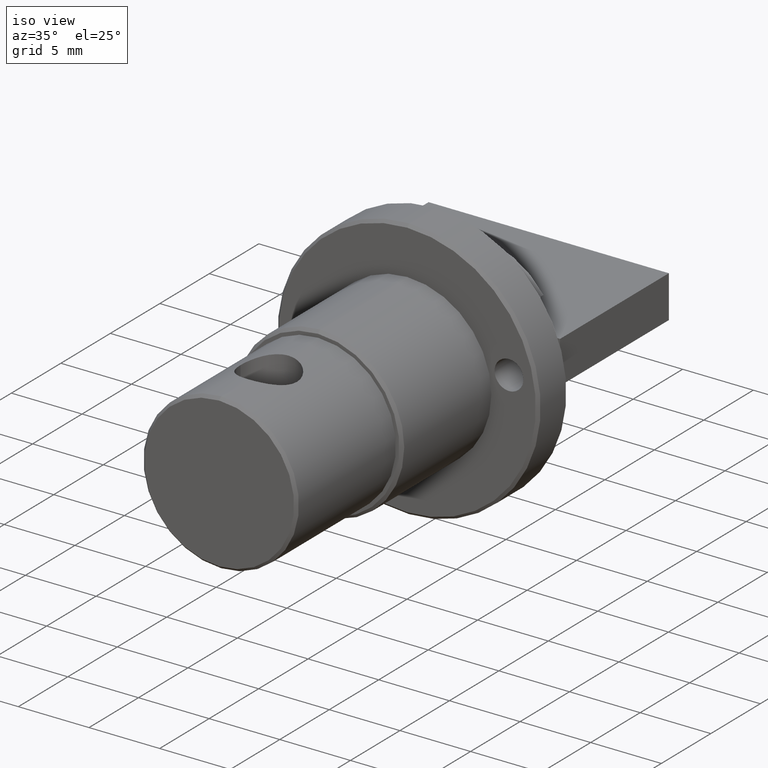
[diagram: clean part render]
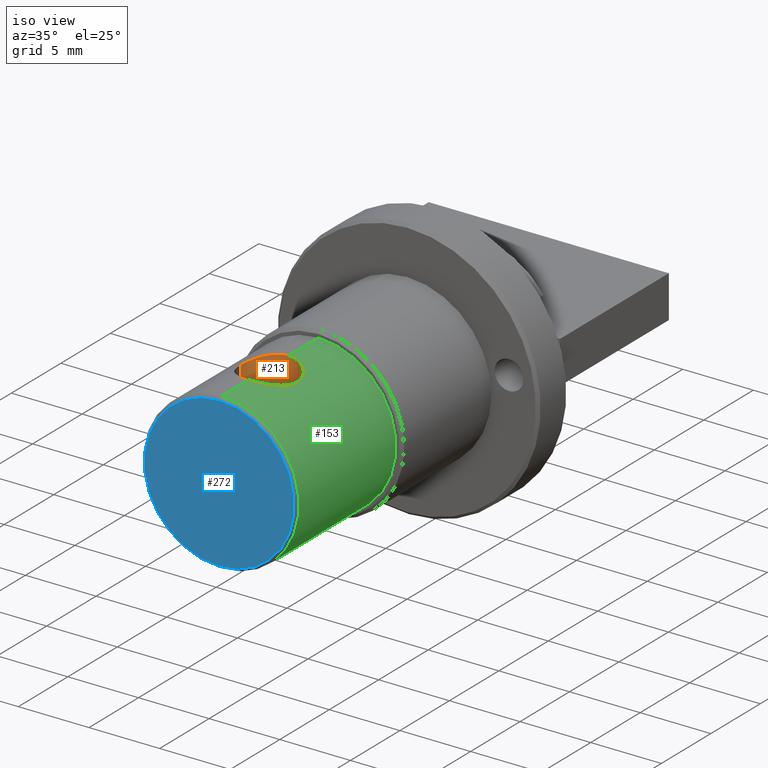
[diagram: same view with three faces highlighted in distinct colors, each labeled with its STEP entity id]
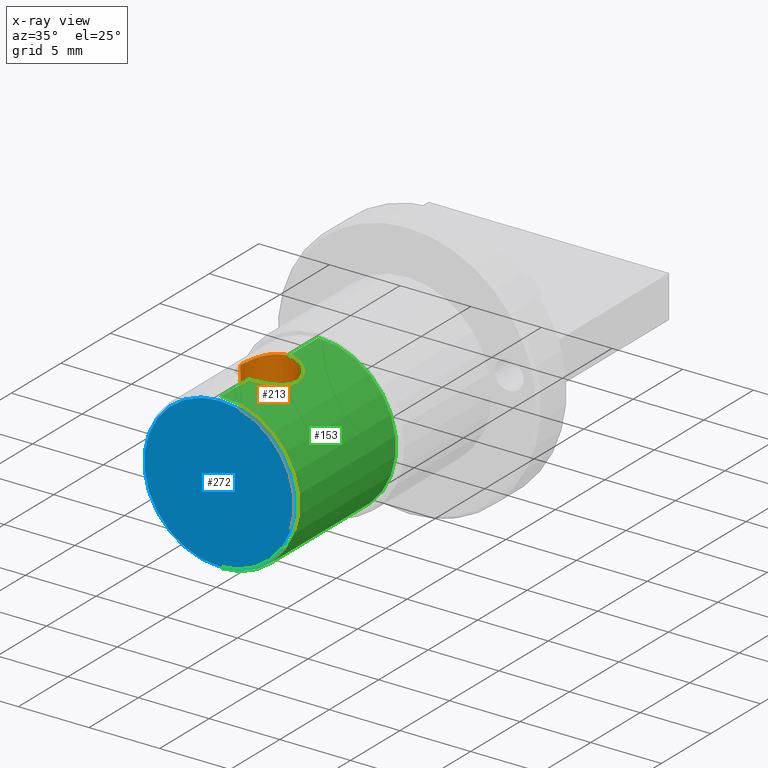
[diagram: x-ray of the same camera — body ghosted, the three highlighted faces saturated]
A machine part, iso view with three faces highlighted in distinct colors.
The next image is the same camera in x-ray (body ghosted, the three faces saturated) — at least one of them is partly hidden behind the body in this view.
Their STEP definitions:

[orange] entity #213 — the highlighted cylindrical surface (edge-blend (fillet) strip) has radius 2 mm, axis along (-0, -0, 1).
#56 = EDGE_CURVE ( 'NONE', #78, #57, #521, .T. ) ;
#57 = VERTEX_POINT ( 'NONE', #514 ) ;
#62 = VERTEX_POINT ( 'NONE', #750 ) ;
#78 = VERTEX_POINT ( 'NONE', #764 ) ;
#83 = EDGE_CURVE ( 'NONE', #84, #62, #724, .T. ) ;
#84 = VERTEX_POINT ( 'NONE', #722 ) ;
#117 = VERTEX_POINT ( 'NONE', #966 ) ;
#119 = EDGE_CURVE ( 'NONE', #117, #62, #960, .T. ) ;
#160 = EDGE_CURVE ( 'NONE', #84, #161, #1021, .T. ) ;
#161 = VERTEX_POINT ( 'NONE', #1265 ) ;
#213 = ADVANCED_FACE ( 'NONE', ( #1282 ), #1236, .F. ) ;
#214 = EDGE_LOOP ( 'NONE', ( #215, #216, #217, #218, #219, #220 ) ) ;
#215 = ORIENTED_EDGE ( 'NONE', *, *, #56, .F. ) ;
#216 = ORIENTED_EDGE ( 'NONE', *, *, #270, .F. ) ;
#217 = ORIENTED_EDGE ( 'NONE', *, *, #160, .F. ) ;
#218 = ORIENTED_EDGE ( 'NONE', *, *, #83, .T. ) ;
#219 = ORIENTED_EDGE ( 'NONE', *, *, #119, .F. ) ;
#220 = ORIENTED_EDGE ( 'NONE', *, *, #258, .F. ) ;
#258 = EDGE_CURVE ( 'NONE', #57, #117, #1460, .T. ) ;
#270 = EDGE_CURVE ( 'NONE', #161, #78, #1327, .T. ) ;
#514 = CARTESIAN_POINT ( 'NONE',  ( -7.796632573378702500, -10.69412143911177200, 5.936314277298955700 ) ) ;
#515 = DIRECTION ( 'NONE',  ( -0.0000000000000000000, -0.0000000000000000000, 1.000000000000000000 ) ) ;
#516 = VECTOR ( 'NONE', #515, 1000.000000000000000 ) ;
#517 = CARTESIAN_POINT ( 'NONE',  ( -7.796632573378701600, -10.69412143911177200, -9.187161105680843300 ) ) ;
#521 = LINE ( 'NONE', #517, #516 ) ;
#553 = CARTESIAN_POINT ( 'NONE',  ( -4.787224662946911700, -8.947997835427653300, -4.599191274786398300 ) ) ;
#554 = CARTESIAN_POINT ( 'NONE',  ( -4.565871250806245600, -9.096592025454578200, -4.551026818398072200 ) ) ;
#722 = CARTESIAN_POINT ( 'NONE',  ( -3.796632573378701200, -10.69412143911177200, -4.310636488660642300 ) ) ;
#724 = LINE ( 'NONE', #796, #795 ) ;
#750 = CARTESIAN_POINT ( 'NONE',  ( -3.796632573378701200, -10.69412143911177200, 5.936314277298955700 ) ) ;
#764 = CARTESIAN_POINT ( 'NONE',  ( -7.796632573378702500, -10.69412143911177200, -4.310636488660642300 ) ) ;
#794 = DIRECTION ( 'NONE',  ( -0.0000000000000000000, -0.0000000000000000000, 1.000000000000000000 ) ) ;
#795 = VECTOR ( 'NONE', #794, 1000.000000000000000 ) ;
#796 = CARTESIAN_POINT ( 'NONE',  ( -3.796632573378701200, -10.69412143911177200, -9.187161105680843300 ) ) ;
#912 = CARTESIAN_POINT ( 'NONE',  ( -3.796632573378701200, -10.69412143911177200, 5.936314277298955700 ) ) ;
#913 = CARTESIAN_POINT ( 'NONE',  ( -3.796632573378701600, -10.56234879575857400, 5.936314277298956600 ) ) ;
#914 = CARTESIAN_POINT ( 'NONE',  ( -3.810012843868659300, -10.42854724916251800, 5.941591823992380000 ) ) ;
#915 = CARTESIAN_POINT ( 'NONE',  ( -3.861680616657353400, -10.17148530830374800, 5.961307160560143500 ) ) ;
#916 = CARTESIAN_POINT ( 'NONE',  ( -3.899781754614450400, -10.04668325976409100, 5.975669795395866400 ) ) ;
#917 = CARTESIAN_POINT ( 'NONE',  ( -4.000636903993294500, -9.804391828346503200, 6.011614278706140600 ) ) ;
#918 = CARTESIAN_POINT ( 'NONE',  ( -4.063056635765268400, -9.688410474715494700, 6.033032516914404100 ) ) ;
#919 = CARTESIAN_POINT ( 'NONE',  ( -4.207086312247201800, -9.473431978560048700, 6.078676878209208200 ) ) ;
#920 = CARTESIAN_POINT ( 'NONE',  ( -4.289496431387442000, -9.372900694955060200, 6.103177327804862000 ) ) ;
#921 = CARTESIAN_POINT ( 'NONE',  ( -4.474270128914631600, -9.187986926275245400, 6.152361125454006300 ) ) ;
#922 = CARTESIAN_POINT ( 'NONE',  ( -4.574342916095379700, -9.105772161941830600, 6.176430937447507900 ) ) ;
#923 = CARTESIAN_POINT ( 'NONE',  ( -4.789881985136525500, -8.961118644635641700, 6.221033127562410700 ) ) ;
#924 = CARTESIAN_POINT ( 'NONE',  ( -4.906686503631032500, -8.898260617001362500, 6.241731503280235000 ) ) ;
#934 = CARTESIAN_POINT ( 'NONE',  ( -4.291483019030438900, -9.370775968644867500, -4.478047801060567300 ) ) ;
#935 = CARTESIAN_POINT ( 'NONE',  ( -4.207892923962649700, -9.472279974038574600, -4.453250950807604800 ) ) ;
#936 = CARTESIAN_POINT ( 'NONE',  ( -4.062743094020730100, -9.688826699858353200, -4.407259112801550100 ) ) ;
#937 = CARTESIAN_POINT ( 'NONE',  ( -4.001227606803428000, -9.803246112795079600, -4.386140245936761800 ) ) ;
#938 = CARTESIAN_POINT ( 'NONE',  ( -3.900418308647793700, -10.04488396077734300, -4.350225559767229000 ) ) ;
#939 = CARTESIAN_POINT ( 'NONE',  ( -3.861398282279971700, -10.17251474896327700, -4.335522913908856200 ) ) ;
#940 = CARTESIAN_POINT ( 'NONE',  ( -3.809849537905188700, -10.42973825014786500, -4.315850435306871600 ) ) ;
#960 = B_SPLINE_CURVE_WITH_KNOTS ( 'NONE', 3,
 ( #965, #964, #963, #962, #961, #924, #923, #922, #921, #920, #919, #918, #917, #916, #915, #914, #913, #912 ),
 .UNSPECIFIED., .F., .F.,
 ( 4, 2, 2, 2, 2, 2, 2, 2, 4 ),
 ( 0.006307469902651559800, 0.006701514600017083300, 0.007095559297382606800, 0.007489603994748130300, 0.007883648692113652900, 0.008277693389479177200, 0.008671738086844699800, 0.009065782784210222500, 0.009459827481575746800 ),
 .UNSPECIFIED. ) ;
#961 = CARTESIAN_POINT ( 'NONE',  ( -5.148247848154877500, -8.797620095176885300, 6.275848707122715800 ) ) ;
#962 = CARTESIAN_POINT ( 'NONE',  ( -5.273355803227969900, -8.759265688621066900, 6.289432360463374400 ) ) ;
#963 = CARTESIAN_POINT ( 'NONE',  ( -5.532647414323493600, -8.707215002163890100, 6.308037380942868900 ) ) ;
#964 = CARTESIAN_POINT ( 'NONE',  ( -5.665319842569435800, -8.694121439111773600, 6.312838894319156700 ) ) ;
#965 = CARTESIAN_POINT ( 'NONE',  ( -5.796632573378701600, -8.694121439111771800, 6.312838894319156700 ) ) ;
#966 = CARTESIAN_POINT ( 'NONE',  ( -5.796632573378701600, -8.694121439111771800, 6.312838894319156700 ) ) ;
#1019 = CARTESIAN_POINT ( 'NONE',  ( -3.796632573378701200, -10.56068842425134600, -4.310636488660642300 ) ) ;
#1020 = CARTESIAN_POINT ( 'NONE',  ( -3.796632573378701200, -10.69412143911177200, -4.310636488660642300 ) ) ;
#1021 = B_SPLINE_CURVE_WITH_KNOTS ( 'NONE', 3,
 ( #1020, #1019, #940, #939, #938, #937, #936, #935, #934, #554, #553, #1316, #1268, #1319, #1267, #1266 ),
 .UNSPECIFIED., .F., .F.,
 ( 4, 2, 2, 2, 2, 2, 2, 4 ),
 ( 0.0000000000000000000, 0.0003943225979855521400, 0.0007886451959711042900, 0.001182967793956656500, 0.001577290391942208600, 0.002365935587913313100, 0.002760258185898866900, 0.003154580783884421500 ),
 .UNSPECIFIED. ) ;
#1231 = DIRECTION ( 'NONE',  ( 1.000000000000000000, 0.0000000000000000000, 0.0000000000000000000 ) ) ;
#1232 = DIRECTION ( 'NONE',  ( -0.0000000000000000000, -0.0000000000000000000, 1.000000000000000000 ) ) ;
#1233 = CARTESIAN_POINT ( 'NONE',  ( -5.796632573378701600, -10.69412143911177200, -9.187161105680843300 ) ) ;
#1234 = AXIS2_PLACEMENT_3D ( 'NONE', #1233, #1232, #1231 ) ;
#1236 = CYLINDRICAL_SURFACE ( 'NONE', #1234, 2.000000000000000400 ) ;
#1265 = CARTESIAN_POINT ( 'NONE',  ( -5.796632573378894400, -8.694121439109775200, -4.687161105681569000 ) ) ;
#1266 = CARTESIAN_POINT ( 'NONE',  ( -5.796632573378894400, -8.694121439109775200, -4.687161105681569000 ) ) ;
#1267 = CARTESIAN_POINT ( 'NONE',  ( -5.664797746405051600, -8.694121439111748700, -4.687161105680854900 ) ) ;
#1268 = CARTESIAN_POINT ( 'NONE',  ( -5.275282480390211000, -8.758761590933851000, -4.663933349050538800 ) ) ;
#1282 = FACE_OUTER_BOUND ( 'NONE', #214, .T. ) ;
#1316 = CARTESIAN_POINT ( 'NONE',  ( -5.147918172736792600, -8.797774261339174700, -4.650119401937325300 ) ) ;
#1319 = CARTESIAN_POINT ( 'NONE',  ( -5.534161755616436200, -8.707029913484039000, -4.682427177039632400 ) ) ;
#1325 = CARTESIAN_POINT ( 'NONE',  ( -5.796632573378894400, -8.694121439109775200, -4.687161105681569000 ) ) ;
#1327 = B_SPLINE_CURVE_WITH_KNOTS ( 'NONE', 3,
 ( #1325, #1355, #1354, #1353, #1352, #1351, #1350, #1349, #1348, #1403, #1402, #1401, #1400, #1399, #1398, #1397, #1396, #1395 ),
 .UNSPECIFIED., .F., .F.,
 ( 4, 2, 2, 2, 2, 2, 2, 2, 4 ),
 ( 0.003154580783884421500, 0.003548663281688291700, 0.003942745779492161900, 0.004336828277296031700, 0.004730910775099902300, 0.005124993272903772100, 0.005519075770707641800, 0.005913158268511511600, 0.006307240766315382200 ),
 .UNSPECIFIED. ) ;
#1348 = CARTESIAN_POINT ( 'NONE',  ( -7.120607049843958000, -9.189479933795265500, -4.526271335815656500 ) ) ;
#1349 = CARTESIAN_POINT ( 'NONE',  ( -7.018894283479181900, -9.105755752591838000, -4.550758411778813800 ) ) ;
#1350 = CARTESIAN_POINT ( 'NONE',  ( -6.803460990345707100, -8.961168531246297400, -4.595339753686738000 ) ) ;
#1351 = CARTESIAN_POINT ( 'NONE',  ( -6.688544805027534700, -8.899150626150763800, -4.615755151080408700 ) ) ;
#1352 = CARTESIAN_POINT ( 'NONE',  ( -6.444873541334097000, -8.797489873464153100, -4.650211937054891100 ) ) ;
#1353 = CARTESIAN_POINT ( 'NONE',  ( -6.319587840804312700, -8.759241402071076300, -4.663763740041400900 ) ) ;
#1354 = CARTESIAN_POINT ( 'NONE',  ( -6.062115176905426700, -8.707475532894093800, -4.682265983081991000 ) ) ;
#1355 = CARTESIAN_POINT ( 'NONE',  ( -5.928387127079219900, -8.694121439111793100, -4.687161105680835300 ) ) ;
#1395 = CARTESIAN_POINT ( 'NONE',  ( -7.796632573378702500, -10.69412143911177200, -4.310636488660642300 ) ) ;
#1396 = CARTESIAN_POINT ( 'NONE',  ( -7.796632573378703400, -10.56281652139025000, -4.310636488660643200 ) ) ;
#1397 = CARTESIAN_POINT ( 'NONE',  ( -7.783580128859766100, -10.43041290075932900, -4.315788145463882200 ) ) ;
#1398 = CARTESIAN_POINT ( 'NONE',  ( -7.731531191994914600, -10.17098654531360000, -4.335650518809998700 ) ) ;
#1399 = CARTESIAN_POINT ( 'NONE',  ( -7.693245490324578400, -10.04619545883123500, -4.350074728716331900 ) ) ;
#1400 = CARTESIAN_POINT ( 'NONE',  ( -7.593245225409162000, -9.805790638557988700, -4.385718656984423100 ) ) ;
#1401 = CARTESIAN_POINT ( 'NONE',  ( -7.530614662382916400, -9.689037120461138700, -4.407224536928949600 ) ) ;
#1402 = CARTESIAN_POINT ( 'NONE',  ( -7.385967303729126200, -9.473095850728480400, -4.453067601825938300 ) ) ;
#1403 = CARTESIAN_POINT ( 'NONE',  ( -7.304016540069915700, -9.373270179198366100, -4.477416301871658200 ) ) ;
#1434 = CARTESIAN_POINT ( 'NONE',  ( -5.796632573378701600, -8.694121439111771800, 6.312838894319156700 ) ) ;
#1435 = CARTESIAN_POINT ( 'NONE',  ( -6.059283089214661200, -8.694121439111768300, 6.312838894319155800 ) ) ;
#1436 = CARTESIAN_POINT ( 'NONE',  ( -6.324461471352406300, -8.747507369359215800, 6.292841999810163700 ) ) ;
#1437 = CARTESIAN_POINT ( 'NONE',  ( -6.685350957671254900, -8.897692466415072900, 6.241921595738635800 ) ) ;
#1438 = CARTESIAN_POINT ( 'NONE',  ( -6.802208536073803400, -8.960417224858954200, 6.221256922005154300 ) ) ;
#1439 = CARTESIAN_POINT ( 'NONE',  ( -7.018261523612966200, -9.105242580539576000, 6.176586771214434000 ) ) ;
#1440 = CARTESIAN_POINT ( 'NONE',  ( -7.118080206862383200, -9.187263294276892400, 6.152577289461397000 ) ) ;
#1441 = CARTESIAN_POINT ( 'NONE',  ( -7.301750985843288100, -9.370692604170153900, 6.103741325951770800 ) ) ;
#1442 = CARTESIAN_POINT ( 'NONE',  ( -7.385413363031122300, -9.472407856503929600, 6.078910882393928200 ) ) ;
#1443 = CARTESIAN_POINT ( 'NONE',  ( -7.529846065706087700, -9.687751991288868300, 6.033155893426458000 ) ) ;
#1444 = CARTESIAN_POINT ( 'NONE',  ( -7.591760627339146700, -9.802541180567375900, 6.011917710515512600 ) ) ;
#1445 = CARTESIAN_POINT ( 'NONE',  ( -7.693309006321118000, -10.04603302210160700, 5.975737670768134000 ) ) ;
#1446 = CARTESIAN_POINT ( 'NONE',  ( -7.731532429452900400, -10.17124638724478200, 5.961326971818881900 ) ) ;
#1447 = CARTESIAN_POINT ( 'NONE',  ( -7.783280397493091300, -10.42866674270873500, 5.941581172903092100 ) ) ;
#1448 = CARTESIAN_POINT ( 'NONE',  ( -7.796632573378702500, -10.56241288513460000, 5.936314277298955700 ) ) ;
#1458 = CARTESIAN_POINT ( 'NONE',  ( -7.796632573378702500, -10.69412143911177200, 5.936314277298955700 ) ) ;
#1460 = B_SPLINE_CURVE_WITH_KNOTS ( 'NONE', 3,
 ( #1458, #1448, #1447, #1446, #1445, #1444, #1443, #1442, #1441, #1440, #1439, #1438, #1437, #1436, #1435, #1434 ),
 .UNSPECIFIED., .F., .F.,
 ( 4, 2, 2, 2, 2, 2, 2, 4 ),
 ( 0.003154811591834433400, 0.003548893880686574500, 0.003942976169538715500, 0.004337058458390856100, 0.004731140747242997500, 0.005125223036095139000, 0.005519305324947279500, 0.006307469902651559800 ),
 .UNSPECIFIED. ) ;

[blue] entity #272 — the highlighted planar face has unit normal (0, -1, 0).
#126 = EDGE_CURVE ( 'NONE', #166, #145, #955, .T. ) ;
#145 = VERTEX_POINT ( 'NONE', #1057 ) ;
#166 = VERTEX_POINT ( 'NONE', #1318 ) ;
#272 = ADVANCED_FACE ( 'NONE', ( #1326 ), #1389, .T. ) ;
#273 = EDGE_LOOP ( 'NONE', ( #274, #276 ) ) ;
#274 = ORIENTED_EDGE ( 'NONE', *, *, #275, .T. ) ;
#275 = EDGE_CURVE ( 'NONE', #145, #166, #1388, .T. ) ;
#276 = ORIENTED_EDGE ( 'NONE', *, *, #126, .T. ) ;
#892 = DIRECTION ( 'NONE',  ( 0.0000000000000000000, 0.0000000000000000000, -1.000000000000000000 ) ) ;
#893 = DIRECTION ( 'NONE',  ( 0.0000000000000000000, -1.000000000000000000, 0.0000000000000000000 ) ) ;
#894 = CARTESIAN_POINT ( 'NONE',  ( -5.796632573378701600, -15.69412143911177000, 0.8128388943191566800 ) ) ;
#895 = AXIS2_PLACEMENT_3D ( 'NONE', #894, #893, #892 ) ;
#955 = CIRCLE ( 'NONE', #895, 5.300000000000002500 ) ;
#1057 = CARTESIAN_POINT ( 'NONE',  ( -5.796632573378701600, -15.69412143911177000, 6.112838894319159200 ) ) ;
#1318 = CARTESIAN_POINT ( 'NONE',  ( -5.796632573378700700, -15.69412143911177000, -4.487161105680845800 ) ) ;
#1326 = FACE_OUTER_BOUND ( 'NONE', #273, .T. ) ;
#1379 = DIRECTION ( 'NONE',  ( 0.0000000000000000000, 0.0000000000000000000, -1.000000000000000000 ) ) ;
#1380 = DIRECTION ( 'NONE',  ( 0.0000000000000000000, -1.000000000000000000, 0.0000000000000000000 ) ) ;
#1381 = CARTESIAN_POINT ( 'NONE',  ( -5.796632573378701600, -15.69412143911177000, 0.8128388943191566800 ) ) ;
#1382 = AXIS2_PLACEMENT_3D ( 'NONE', #1381, #1380, #1379 ) ;
#1384 = DIRECTION ( 'NONE',  ( 0.0000000000000000000, -0.0000000000000000000, -1.000000000000000000 ) ) ;
#1385 = DIRECTION ( 'NONE',  ( 0.0000000000000000000, -1.000000000000000000, 0.0000000000000000000 ) ) ;
#1386 = CARTESIAN_POINT ( 'NONE',  ( -5.796632573378701600, -15.69412143911177000, 0.8128388943191566800 ) ) ;
#1387 = AXIS2_PLACEMENT_3D ( 'NONE', #1386, #1385, #1384 ) ;
#1388 = CIRCLE ( 'NONE', #1382, 5.300000000000002500 ) ;
#1389 = PLANE ( 'NONE',  #1387 ) ;

[green] entity #153 — the highlighted cylindrical surface (partial cylindrical patch) has radius 5.5 mm, axis along (-0, 1, -0).
#48 = EDGE_CURVE ( 'NONE', #49, #129, #531, .T. ) ;
#49 = VERTEX_POINT ( 'NONE', #526 ) ;
#54 = VERTEX_POINT ( 'NONE', #519 ) ;
#60 = VERTEX_POINT ( 'NONE', #815 ) ;
#62 = VERTEX_POINT ( 'NONE', #750 ) ;
#63 = EDGE_CURVE ( 'NONE', #54, #84, #762, .T. ) ;
#81 = EDGE_CURVE ( 'NONE', #62, #60, #725, .T. ) ;
#84 = VERTEX_POINT ( 'NONE', #722 ) ;
#112 = ORIENTED_EDGE ( 'NONE', *, *, #113, .T. ) ;
#113 = EDGE_CURVE ( 'NONE', #164, #114, #1079, .T. ) ;
#114 = VERTEX_POINT ( 'NONE', #1074 ) ;
#115 = ORIENTED_EDGE ( 'NONE', *, *, #116, .F. ) ;
#116 = EDGE_CURVE ( 'NONE', #117, #114, #1073, .T. ) ;
#117 = VERTEX_POINT ( 'NONE', #966 ) ;
#118 = ORIENTED_EDGE ( 'NONE', *, *, #119, .T. ) ;
#119 = EDGE_CURVE ( 'NONE', #117, #62, #960, .T. ) ;
#120 = ORIENTED_EDGE ( 'NONE', *, *, #81, .T. ) ;
#121 = ORIENTED_EDGE ( 'NONE', *, *, #122, .F. ) ;
#122 = EDGE_CURVE ( 'NONE', #49, #60, #932, .T. ) ;
#129 = VERTEX_POINT ( 'NONE', #989 ) ;
#153 = ADVANCED_FACE ( 'NONE', ( #1045 ), #1030, .T. ) ;
#154 = EDGE_LOOP ( 'NONE', ( #155, #156, #158, #159, #162, #112, #115, #118, #120, #121 ) ) ;
#155 = ORIENTED_EDGE ( 'NONE', *, *, #48, .T. ) ;
#156 = ORIENTED_EDGE ( 'NONE', *, *, #157, .T. ) ;
#157 = EDGE_CURVE ( 'NONE', #129, #54, #1025, .T. ) ;
#158 = ORIENTED_EDGE ( 'NONE', *, *, #63, .T. ) ;
#159 = ORIENTED_EDGE ( 'NONE', *, *, #160, .T. ) ;
#160 = EDGE_CURVE ( 'NONE', #84, #161, #1021, .T. ) ;
#161 = VERTEX_POINT ( 'NONE', #1265 ) ;
#162 = ORIENTED_EDGE ( 'NONE', *, *, #163, .T. ) ;
#163 = EDGE_CURVE ( 'NONE', #161, #164, #1324, .T. ) ;
#164 = VERTEX_POINT ( 'NONE', #1320 ) ;
#519 = CARTESIAN_POINT ( 'NONE',  ( -5.796632573379114600, -12.69412143911574700, -4.687161105682288400 ) ) ;
#526 = CARTESIAN_POINT ( 'NONE',  ( -5.796632573378701600, -15.49412143911177400, 6.312838894319156700 ) ) ;
#527 = DIRECTION ( 'NONE',  ( 0.0000000000000000000, 0.0000000000000000000, -1.000000000000000000 ) ) ;
#528 = DIRECTION ( 'NONE',  ( 0.0000000000000000000, 1.000000000000000000, 0.0000000000000000000 ) ) ;
#529 = CARTESIAN_POINT ( 'NONE',  ( -5.796632573378701600, -15.49412143911177400, 0.8128388943191566800 ) ) ;
#530 = AXIS2_PLACEMENT_3D ( 'NONE', #529, #528, #527 ) ;
#531 = CIRCLE ( 'NONE', #530, 5.500000000000000000 ) ;
#553 = CARTESIAN_POINT ( 'NONE',  ( -4.787224662946911700, -8.947997835427653300, -4.599191274786398300 ) ) ;
#554 = CARTESIAN_POINT ( 'NONE',  ( -4.565871250806245600, -9.096592025454578200, -4.551026818398072200 ) ) ;
#703 = CARTESIAN_POINT ( 'NONE',  ( -5.147625345599688100, -12.59038833385704900, -4.650090334295320800 ) ) ;
#704 = CARTESIAN_POINT ( 'NONE',  ( -5.274560145367604300, -12.62930740516476500, -4.663871541262743400 ) ) ;
#705 = CARTESIAN_POINT ( 'NONE',  ( -5.534026771268864700, -12.68121543185497300, -4.682427705946870400 ) ) ;
#706 = CARTESIAN_POINT ( 'NONE',  ( -5.664808245151011300, -12.69412143911182000, -4.687161105680862000 ) ) ;
#715 = CARTESIAN_POINT ( 'NONE',  ( -4.000647473433423900, -11.58375847821525000, 6.011615129372795100 ) ) ;
#716 = CARTESIAN_POINT ( 'NONE',  ( -3.900304179395548000, -11.34293201450610900, 5.975858886877506200 ) ) ;
#717 = CARTESIAN_POINT ( 'NONE',  ( -3.861410972731977000, -11.21604569917905700, 5.961206403292191400 ) ) ;
#718 = CARTESIAN_POINT ( 'NONE',  ( -3.809539339834588900, -10.95670106143546500, 5.941408980830805000 ) ) ;
#719 = CARTESIAN_POINT ( 'NONE',  ( -3.796632573378700700, -10.82595015203537700, 5.936314277298955700 ) ) ;
#722 = CARTESIAN_POINT ( 'NONE',  ( -3.796632573378701200, -10.69412143911177200, -4.310636488660642300 ) ) ;
#723 = CARTESIAN_POINT ( 'NONE',  ( -3.796632573378701200, -10.69412143911177200, 5.936314277298955700 ) ) ;
#725 = B_SPLINE_CURVE_WITH_KNOTS ( 'NONE', 3,
 ( #723, #719, #718, #717, #716, #715, #808, #807, #806, #805, #804, #803, #802, #801, #800, #799, #798, #797 ),
 .UNSPECIFIED., .F., .F.,
 ( 4, 2, 2, 2, 2, 2, 2, 2, 4 ),
 ( 0.009459827481575746800, 0.009854039845888958000, 0.01024825221020216900, 0.01064246457451538000, 0.01103667693882859300, 0.01143088930314180300, 0.01182510166745501600, 0.01221931403176822700, 0.01261352639608143800 ),
 .UNSPECIFIED. ) ;
#750 = CARTESIAN_POINT ( 'NONE',  ( -3.796632573378701200, -10.69412143911177200, 5.936314277298955700 ) ) ;
#756 = CARTESIAN_POINT ( 'NONE',  ( -3.899873576284074600, -11.34184288815533400, -4.350026280403141300 ) ) ;
#757 = CARTESIAN_POINT ( 'NONE',  ( -4.000827554191563000, -11.58424620658697700, -4.386002884239025500 ) ) ;
#758 = CARTESIAN_POINT ( 'NONE',  ( -4.062273699851202100, -11.69851874935681800, -4.407096123471267100 ) ) ;
#759 = CARTESIAN_POINT ( 'NONE',  ( -4.206490343118499500, -11.91406502246068100, -4.452820606605814500 ) ) ;
#760 = CARTESIAN_POINT ( 'NONE',  ( -4.290249481484141600, -12.01609992981475000, -4.477700576151010900 ) ) ;
#762 = B_SPLINE_CURVE_WITH_KNOTS ( 'NONE', 3,
 ( #860, #706, #705, #704, #703, #879, #878, #877, #876, #760, #759, #758, #757, #756, #856, #855, #854, #853 ),
 .UNSPECIFIED., .F., .F.,
 ( 4, 2, 2, 2, 2, 2, 2, 2, 4 ),
 ( 0.009459374557435156600, 0.009853578062109342000, 0.01024778156678352700, 0.01064198507145771300, 0.01103618857613189800, 0.01143039208080608300, 0.01182459558548026900, 0.01221879909015445400, 0.01261300259482863900 ),
 .UNSPECIFIED. ) ;
#797 = CARTESIAN_POINT ( 'NONE',  ( -5.796632573378703400, -12.69412143911177400, 6.312838894319156700 ) ) ;
#798 = CARTESIAN_POINT ( 'NONE',  ( -5.663255829621405700, -12.69412143911177500, 6.312838894319157600 ) ) ;
#799 = CARTESIAN_POINT ( 'NONE',  ( -5.532386228391893600, -12.68090061015841900, 6.307992790956968000 ) ) ;
#800 = CARTESIAN_POINT ( 'NONE',  ( -5.275807069964426600, -12.62954346036113200, 6.289633876200974200 ) ) ;
#801 = CARTESIAN_POINT ( 'NONE',  ( -5.148733521423108300, -12.59082812523711500, 6.275918185185428700 ) ) ;
#802 = CARTESIAN_POINT ( 'NONE',  ( -4.906123047674015900, -12.48974451184913200, 6.241651039203720300 ) ) ;
#803 = CARTESIAN_POINT ( 'NONE',  ( -4.791763901125906800, -12.42821301248487000, 6.221383896623574800 ) ) ;
#804 = CARTESIAN_POINT ( 'NONE',  ( -4.576134197040436100, -12.28384416546198000, 6.176839621741073000 ) ) ;
#805 = CARTESIAN_POINT ( 'NONE',  ( -4.474082886113517800, -12.20000415463267600, 6.152302113639967400 ) ) ;
#806 = CARTESIAN_POINT ( 'NONE',  ( -4.290673726548191300, -12.01658443664431900, 6.103499826321689500 ) ) ;
#807 = CARTESIAN_POINT ( 'NONE',  ( -4.208457039808195100, -11.91671358681810800, 6.079100891590705700 ) ) ;
#808 = CARTESIAN_POINT ( 'NONE',  ( -4.063040472570534700, -11.69995020837653900, 6.033037681468360200 ) ) ;
#815 = CARTESIAN_POINT ( 'NONE',  ( -5.796632573378703400, -12.69412143911177400, 6.312838894319156700 ) ) ;
#853 = CARTESIAN_POINT ( 'NONE',  ( -3.796632573378701200, -10.69412143911177200, -4.310636488660642300 ) ) ;
#854 = CARTESIAN_POINT ( 'NONE',  ( -3.796632573378701600, -10.82751415453294200, -4.310636488660642300 ) ) ;
#855 = CARTESIAN_POINT ( 'NONE',  ( -3.809855658329309100, -10.95835930801986000, -4.315852177254613200 ) ) ;
#856 = CARTESIAN_POINT ( 'NONE',  ( -3.861185037813843000, -11.21483921162792900, -4.335442125097868500 ) ) ;
#860 = CARTESIAN_POINT ( 'NONE',  ( -5.796632573379114600, -12.69412143911574700, -4.687161105682288400 ) ) ;
#876 = CARTESIAN_POINT ( 'NONE',  ( -4.473580669052262600, -12.19956184241086200, -4.526499226329016200 ) ) ;
#877 = CARTESIAN_POINT ( 'NONE',  ( -4.573465185638808900, -12.28186466501923300, -4.550567752195723500 ) ) ;
#878 = CARTESIAN_POINT ( 'NONE',  ( -4.790401469020570100, -12.42748982882807400, -4.595466596214142100 ) ) ;
#879 = CARTESIAN_POINT ( 'NONE',  ( -4.906657946647866800, -12.48994539529222300, -4.616042325815896200 ) ) ;
#912 = CARTESIAN_POINT ( 'NONE',  ( -3.796632573378701200, -10.69412143911177200, 5.936314277298955700 ) ) ;
#913 = CARTESIAN_POINT ( 'NONE',  ( -3.796632573378701600, -10.56234879575857400, 5.936314277298956600 ) ) ;
#914 = CARTESIAN_POINT ( 'NONE',  ( -3.810012843868659300, -10.42854724916251800, 5.941591823992380000 ) ) ;
#915 = CARTESIAN_POINT ( 'NONE',  ( -3.861680616657353400, -10.17148530830374800, 5.961307160560143500 ) ) ;
#916 = CARTESIAN_POINT ( 'NONE',  ( -3.899781754614450400, -10.04668325976409100, 5.975669795395866400 ) ) ;
#917 = CARTESIAN_POINT ( 'NONE',  ( -4.000636903993294500, -9.804391828346503200, 6.011614278706140600 ) ) ;
#918 = CARTESIAN_POINT ( 'NONE',  ( -4.063056635765268400, -9.688410474715494700, 6.033032516914404100 ) ) ;
#919 = CARTESIAN_POINT ( 'NONE',  ( -4.207086312247201800, -9.473431978560048700, 6.078676878209208200 ) ) ;
#920 = CARTESIAN_POINT ( 'NONE',  ( -4.289496431387442000, -9.372900694955060200, 6.103177327804862000 ) ) ;
#921 = CARTESIAN_POINT ( 'NONE',  ( -4.474270128914631600, -9.187986926275245400, 6.152361125454006300 ) ) ;
#922 = CARTESIAN_POINT ( 'NONE',  ( -4.574342916095379700, -9.105772161941830600, 6.176430937447507900 ) ) ;
#923 = CARTESIAN_POINT ( 'NONE',  ( -4.789881985136525500, -8.961118644635641700, 6.221033127562410700 ) ) ;
#924 = CARTESIAN_POINT ( 'NONE',  ( -4.906686503631032500, -8.898260617001362500, 6.241731503280235000 ) ) ;
#929 = DIRECTION ( 'NONE',  ( -0.0000000000000000000, 1.000000000000000000, -0.0000000000000000000 ) ) ;
#930 = VECTOR ( 'NONE', #929, 1000.000000000000000 ) ;
#931 = CARTESIAN_POINT ( 'NONE',  ( -5.796632573378701600, -15.69412143911177000, 6.312838894319156700 ) ) ;
#932 = LINE ( 'NONE', #931, #930 ) ;
#934 = CARTESIAN_POINT ( 'NONE',  ( -4.291483019030438900, -9.370775968644867500, -4.478047801060567300 ) ) ;
#935 = CARTESIAN_POINT ( 'NONE',  ( -4.207892923962649700, -9.472279974038574600, -4.453250950807604800 ) ) ;
#936 = CARTESIAN_POINT ( 'NONE',  ( -4.062743094020730100, -9.688826699858353200, -4.407259112801550100 ) ) ;
#937 = CARTESIAN_POINT ( 'NONE',  ( -4.001227606803428000, -9.803246112795079600, -4.386140245936761800 ) ) ;
#938 = CARTESIAN_POINT ( 'NONE',  ( -3.900418308647793700, -10.04488396077734300, -4.350225559767229000 ) ) ;
#939 = CARTESIAN_POINT ( 'NONE',  ( -3.861398282279971700, -10.17251474896327700, -4.335522913908856200 ) ) ;
#940 = CARTESIAN_POINT ( 'NONE',  ( -3.809849537905188700, -10.42973825014786500, -4.315850435306871600 ) ) ;
#960 = B_SPLINE_CURVE_WITH_KNOTS ( 'NONE', 3,
 ( #965, #964, #963, #962, #961, #924, #923, #922, #921, #920, #919, #918, #917, #916, #915, #914, #913, #912 ),
 .UNSPECIFIED., .F., .F.,
 ( 4, 2, 2, 2, 2, 2, 2, 2, 4 ),
 ( 0.006307469902651559800, 0.006701514600017083300, 0.007095559297382606800, 0.007489603994748130300, 0.007883648692113652900, 0.008277693389479177200, 0.008671738086844699800, 0.009065782784210222500, 0.009459827481575746800 ),
 .UNSPECIFIED. ) ;
#961 = CARTESIAN_POINT ( 'NONE',  ( -5.148247848154877500, -8.797620095176885300, 6.275848707122715800 ) ) ;
#962 = CARTESIAN_POINT ( 'NONE',  ( -5.273355803227969900, -8.759265688621066900, 6.289432360463374400 ) ) ;
#963 = CARTESIAN_POINT ( 'NONE',  ( -5.532647414323493600, -8.707215002163890100, 6.308037380942868900 ) ) ;
#964 = CARTESIAN_POINT ( 'NONE',  ( -5.665319842569435800, -8.694121439111773600, 6.312838894319156700 ) ) ;
#965 = CARTESIAN_POINT ( 'NONE',  ( -5.796632573378701600, -8.694121439111771800, 6.312838894319156700 ) ) ;
#966 = CARTESIAN_POINT ( 'NONE',  ( -5.796632573378701600, -8.694121439111771800, 6.312838894319156700 ) ) ;
#967 = DIRECTION ( 'NONE',  ( -0.0000000000000000000, 1.000000000000000000, -0.0000000000000000000 ) ) ;
#968 = VECTOR ( 'NONE', #967, 1000.000000000000000 ) ;
#969 = CARTESIAN_POINT ( 'NONE',  ( -5.796632573378701600, -15.69412143911177000, 6.312838894319156700 ) ) ;
#989 = CARTESIAN_POINT ( 'NONE',  ( -5.796632573378700700, -15.49412143911177400, -4.687161105680843300 ) ) ;
#1019 = CARTESIAN_POINT ( 'NONE',  ( -3.796632573378701200, -10.56068842425134600, -4.310636488660642300 ) ) ;
#1020 = CARTESIAN_POINT ( 'NONE',  ( -3.796632573378701200, -10.69412143911177200, -4.310636488660642300 ) ) ;
#1021 = B_SPLINE_CURVE_WITH_KNOTS ( 'NONE', 3,
 ( #1020, #1019, #940, #939, #938, #937, #936, #935, #934, #554, #553, #1316, #1268, #1319, #1267, #1266 ),
 .UNSPECIFIED., .F., .F.,
 ( 4, 2, 2, 2, 2, 2, 2, 4 ),
 ( 0.0000000000000000000, 0.0003943225979855521400, 0.0007886451959711042900, 0.001182967793956656500, 0.001577290391942208600, 0.002365935587913313100, 0.002760258185898866900, 0.003154580783884421500 ),
 .UNSPECIFIED. ) ;
#1022 = DIRECTION ( 'NONE',  ( -0.0000000000000000000, 1.000000000000000000, -0.0000000000000000000 ) ) ;
#1023 = VECTOR ( 'NONE', #1022, 1000.000000000000000 ) ;
#1024 = CARTESIAN_POINT ( 'NONE',  ( -5.796632573378700700, -15.69412143911177000, -4.687161105680843300 ) ) ;
#1025 = LINE ( 'NONE', #1024, #1023 ) ;
#1026 = DIRECTION ( 'NONE',  ( 0.0000000000000000000, 0.0000000000000000000, 1.000000000000000000 ) ) ;
#1027 = DIRECTION ( 'NONE',  ( -0.0000000000000000000, 1.000000000000000000, -0.0000000000000000000 ) ) ;
#1028 = CARTESIAN_POINT ( 'NONE',  ( -5.796632573378701600, -15.69412143911177000, 0.8128388943191566800 ) ) ;
#1029 = AXIS2_PLACEMENT_3D ( 'NONE', #1028, #1027, #1026 ) ;
#1030 = CYLINDRICAL_SURFACE ( 'NONE', #1029, 5.500000000000000000 ) ;
#1045 = FACE_OUTER_BOUND ( 'NONE', #154, .T. ) ;
#1073 = LINE ( 'NONE', #969, #968 ) ;
#1074 = CARTESIAN_POINT ( 'NONE',  ( -5.796632573378701600, -5.694121439111768300, 6.312838894319156700 ) ) ;
#1075 = DIRECTION ( 'NONE',  ( 0.0000000000000000000, 0.0000000000000000000, -1.000000000000000000 ) ) ;
#1076 = DIRECTION ( 'NONE',  ( 0.0000000000000000000, -1.000000000000000000, 0.0000000000000000000 ) ) ;
#1077 = CARTESIAN_POINT ( 'NONE',  ( -5.796632573378701600, -5.694121439111768300, 0.8128388943191566800 ) ) ;
#1078 = AXIS2_PLACEMENT_3D ( 'NONE', #1077, #1076, #1075 ) ;
#1079 = CIRCLE ( 'NONE', #1078, 5.500000000000000000 ) ;
#1265 = CARTESIAN_POINT ( 'NONE',  ( -5.796632573378894400, -8.694121439109775200, -4.687161105681569000 ) ) ;
#1266 = CARTESIAN_POINT ( 'NONE',  ( -5.796632573378894400, -8.694121439109775200, -4.687161105681569000 ) ) ;
#1267 = CARTESIAN_POINT ( 'NONE',  ( -5.664797746405051600, -8.694121439111748700, -4.687161105680854900 ) ) ;
#1268 = CARTESIAN_POINT ( 'NONE',  ( -5.275282480390211000, -8.758761590933851000, -4.663933349050538800 ) ) ;
#1316 = CARTESIAN_POINT ( 'NONE',  ( -5.147918172736792600, -8.797774261339174700, -4.650119401937325300 ) ) ;
#1319 = CARTESIAN_POINT ( 'NONE',  ( -5.534161755616436200, -8.707029913484039000, -4.682427177039632400 ) ) ;
#1320 = CARTESIAN_POINT ( 'NONE',  ( -5.796632573378700700, -5.694121439111768300, -4.687161105680843300 ) ) ;
#1321 = DIRECTION ( 'NONE',  ( -0.0000000000000000000, 1.000000000000000000, -0.0000000000000000000 ) ) ;
#1322 = VECTOR ( 'NONE', #1321, 1000.000000000000000 ) ;
#1323 = CARTESIAN_POINT ( 'NONE',  ( -5.796632573378700700, -15.69412143911177000, -4.687161105680843300 ) ) ;
#1324 = LINE ( 'NONE', #1323, #1322 ) ;